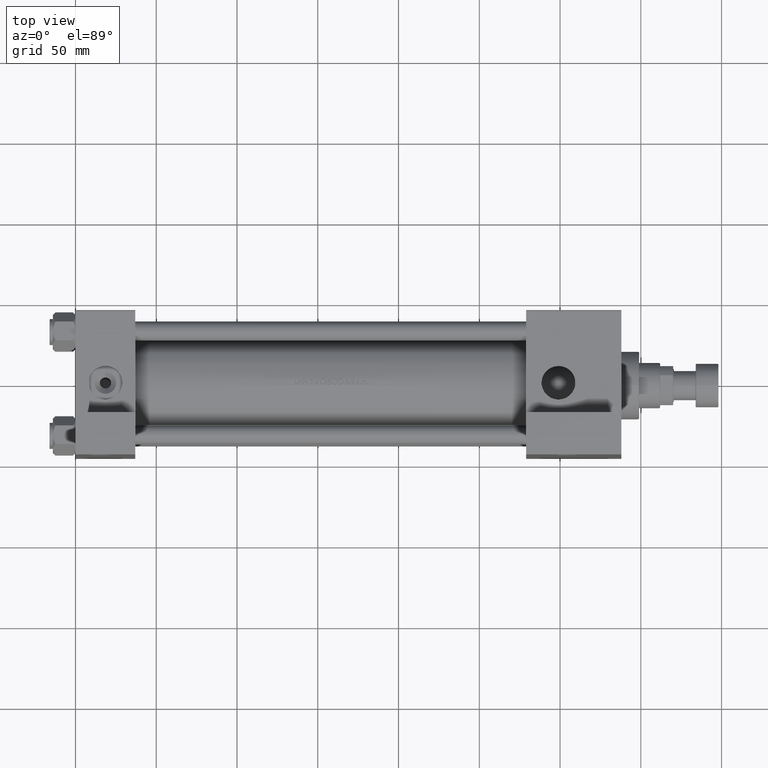
[diagram: clean part render]
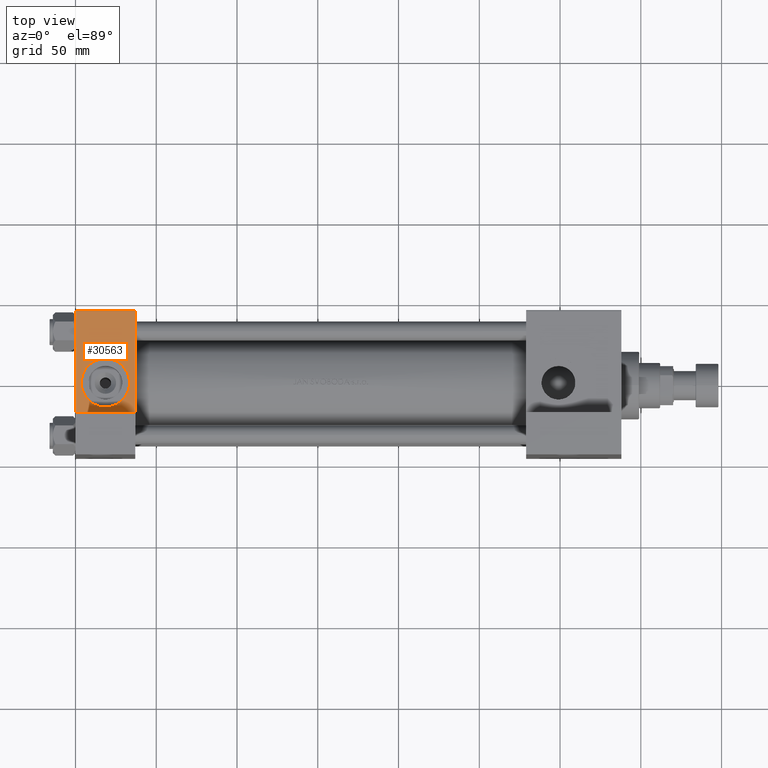
[diagram: same view with one face highlighted and labeled with its STEP entity id]
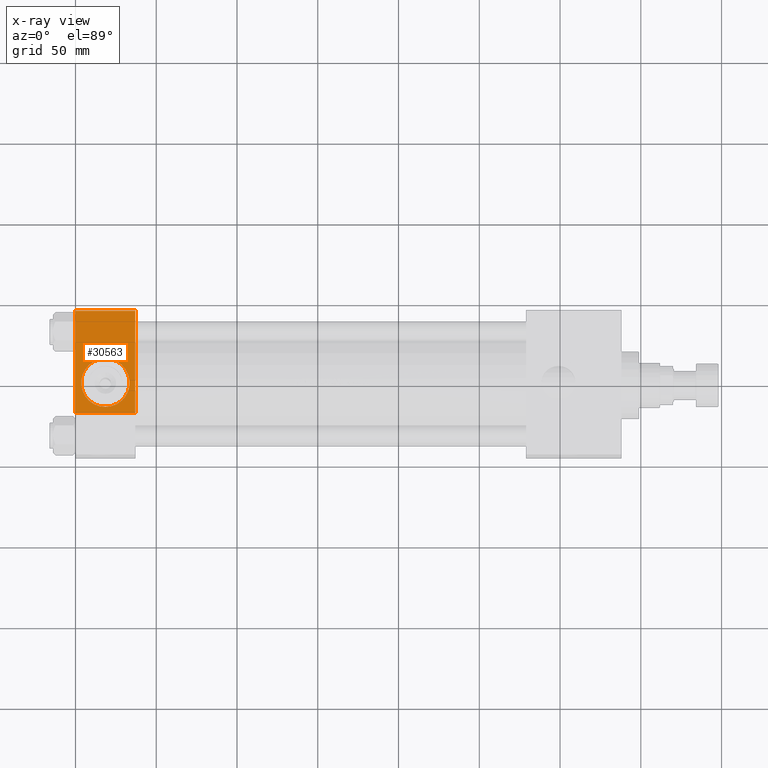
[diagram: x-ray of the same camera — body ghosted, the highlighted face saturated]
A machine part, top view. The second image highlights one B-rep face of the part: STEP entity #30563.
The next image is the same camera in x-ray: the body ghosted, the highlighted face saturated — about 0% of this face is hidden behind the body in this view.
In plain terms, the highlighted planar face has unit normal (0, 0, -1).
Its self-contained STEP definition (entity closure, byte-faithful):
#689 = CARTESIAN_POINT ( 'NONE',  ( 37.00000000000000000, -45.00000000000000711, 45.00000000000000000 ) ) ;
#936 = FACE_BOUND ( 'NONE', #17667, .T. ) ;
#1502 = DIRECTION ( 'NONE',  ( -1.000000000000000000, 0.000000000000000000, 0.000000000000000000 ) ) ;
#2606 = ORIENTED_EDGE ( 'NONE', *, *, #35530, .F. ) ;
#2686 = LINE ( 'NONE', #41236, #15667 ) ;
#3102 = CARTESIAN_POINT ( 'NONE',  ( 18.50000000000000355, -45.00000000000000000, 14.99999999999999822 ) ) ;
#4103 = CARTESIAN_POINT ( 'NONE',  ( 18.50000000000000000, -45.00000000000000000, -15.00000000000000533 ) ) ;
#5008 = FACE_OUTER_BOUND ( 'NONE', #46970, .T. ) ;
#6269 = ORIENTED_EDGE ( 'NONE', *, *, #17444, .T. ) ;
#6507 = EDGE_CURVE ( 'NONE', #21538, #24263, #37082, .T. ) ;
#7275 = DIRECTION ( 'NONE',  ( 0.000000000000000000, 0.000000000000000000, -1.000000000000000000 ) ) ;
#8700 = ORIENTED_EDGE ( 'NONE', *, *, #21577, .F. ) ;
#10874 = VECTOR ( 'NONE', #42877, 1000.000000000000000 ) ;
#10902 = VERTEX_POINT ( 'NONE', #47848 ) ;
#13811 = CARTESIAN_POINT ( 'NONE',  ( 0.000000000000000000, -45.00000000000000711, 45.00000000000000000 ) ) ;
#14026 = VERTEX_POINT ( 'NONE', #14494 ) ;
#14408 = DIRECTION ( 'NONE',  ( 0.000000000000000000, -1.000000000000000000, -8.673617379884036705E-17 ) ) ;
#14494 = CARTESIAN_POINT ( 'NONE',  ( 37.00000000000000000, -45.00000000000000711, 44.49999999999997158 ) ) ;
#15667 = VECTOR ( 'NONE', #37426, 1000.000000000000000 ) ;
#16095 = CIRCLE ( 'NONE', #23375, 15.00000000000000178 ) ;
#17444 = EDGE_CURVE ( 'NONE', #36820, #44494, #37620, .T. ) ;
#17667 = EDGE_LOOP ( 'NONE', ( #2606, #21955 ) ) ;
#19405 = AXIS2_PLACEMENT_3D ( 'NONE', #48627, #14408, #38204 ) ;
#19799 = VECTOR ( 'NONE', #1502, 1000.000000000000000 ) ;
#19982 = PLANE ( 'NONE',  #34668 ) ;
#20072 = LINE ( 'NONE', #42625, #10874 ) ;
#20286 = CARTESIAN_POINT ( 'NONE',  ( -7.145701223179000102E-16, -45.00000000000001421, -19.00000000000000355 ) ) ;
#20366 = EDGE_CURVE ( 'NONE', #14026, #36820, #2686, .T. ) ;
#20795 = LINE ( 'NONE', #20286, #19799 ) ;
#21538 = VERTEX_POINT ( 'NONE', #3102 ) ;
#21577 = EDGE_CURVE ( 'NONE', #14026, #10902, #20072, .T. ) ;
#21955 = ORIENTED_EDGE ( 'NONE', *, *, #6507, .F. ) ;
#23375 = AXIS2_PLACEMENT_3D ( 'NONE', #38690, #27560, #7275 ) ;
#24263 = VERTEX_POINT ( 'NONE', #4103 ) ;
#26956 = VECTOR ( 'NONE', #29306, 1000.000000000000000 ) ;
#27560 = DIRECTION ( 'NONE',  ( 0.000000000000000000, -1.000000000000000000, -8.673617379884036705E-17 ) ) ;
#28609 = DIRECTION ( 'NONE',  ( -0.000000000000000000, 1.000000000000000000, 7.709882115452478166E-17 ) ) ;
#28704 = ORIENTED_EDGE ( 'NONE', *, *, #46370, .F. ) ;
#29306 = DIRECTION ( 'NONE',  ( 0.000000000000000000, 7.709882115452476934E-17, -1.000000000000000000 ) ) ;
#30563 = ADVANCED_FACE ( 'NONE', ( #936, #5008 ), #19982, .F. ) ;
#31848 = ORIENTED_EDGE ( 'NONE', *, *, #20366, .T. ) ;
#34668 = AXIS2_PLACEMENT_3D ( 'NONE', #689, #28609, #47827 ) ;
#35530 = EDGE_CURVE ( 'NONE', #24263, #21538, #16095, .T. ) ;
#36820 = VERTEX_POINT ( 'NONE', #49995 ) ;
#37082 = CIRCLE ( 'NONE', #19405, 15.00000000000000178 ) ;
#37426 = DIRECTION ( 'NONE',  ( -1.000000000000000000, 0.000000000000000000, 0.000000000000000000 ) ) ;
#37620 = LINE ( 'NONE', #13811, #26956 ) ;
#38204 = DIRECTION ( 'NONE',  ( 0.000000000000000000, 0.000000000000000000, -1.000000000000000000 ) ) ;
#38690 = CARTESIAN_POINT ( 'NONE',  ( 18.50000000000000000, -45.00000000000000000, -3.469446951953614978E-15 ) ) ;
#41236 = CARTESIAN_POINT ( 'NONE',  ( 37.00000000000000000, -45.00000000000000711, 44.49999999999997158 ) ) ;
#42625 = CARTESIAN_POINT ( 'NONE',  ( 37.00000000000000000, -45.00000000000000711, 45.00000000000000000 ) ) ;
#42877 = DIRECTION ( 'NONE',  ( 0.000000000000000000, 7.709882115452476934E-17, -1.000000000000000000 ) ) ;
#44494 = VERTEX_POINT ( 'NONE', #48999 ) ;
#46370 = EDGE_CURVE ( 'NONE', #10902, #44494, #20795, .T. ) ;
#46970 = EDGE_LOOP ( 'NONE', ( #28704, #8700, #31848, #6269 ) ) ;
#47827 = DIRECTION ( 'NONE',  ( 0.000000000000000000, -7.709882115452478166E-17, 1.000000000000000000 ) ) ;
#47848 = CARTESIAN_POINT ( 'NONE',  ( 37.00000000000000000, -45.00000000000000000, -18.99999999999997513 ) ) ;
#48627 = CARTESIAN_POINT ( 'NONE',  ( 18.50000000000000000, -45.00000000000000000, -3.469446951953614978E-15 ) ) ;
#48999 = CARTESIAN_POINT ( 'NONE',  ( -7.145701223179003060E-16, -45.00000000000000711, -18.99999999999999645 ) ) ;
#49995 = CARTESIAN_POINT ( 'NONE',  ( 0.000000000000000000, -45.00000000000000711, 44.49999999999997158 ) ) ;